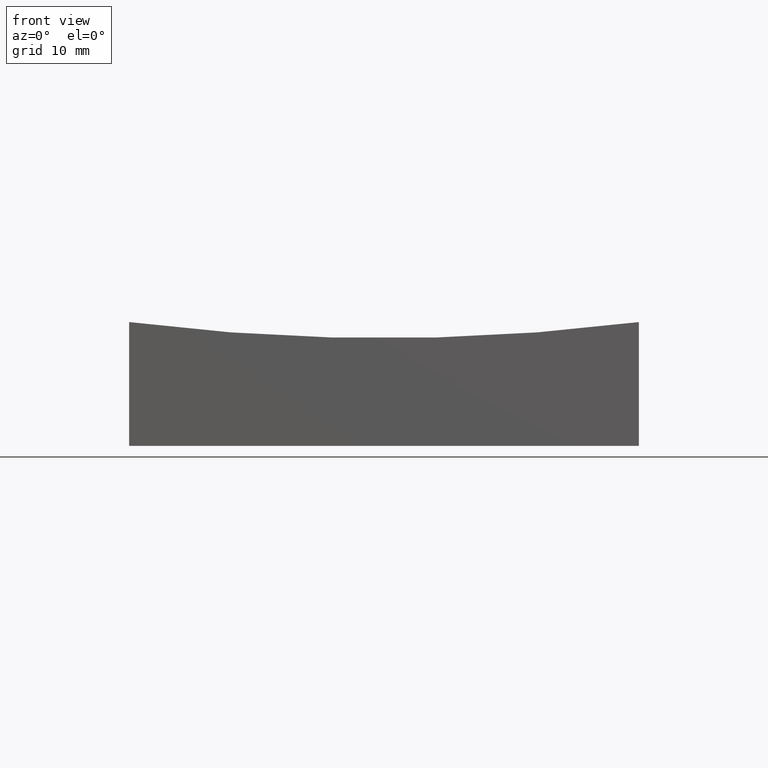
[diagram: clean part render]
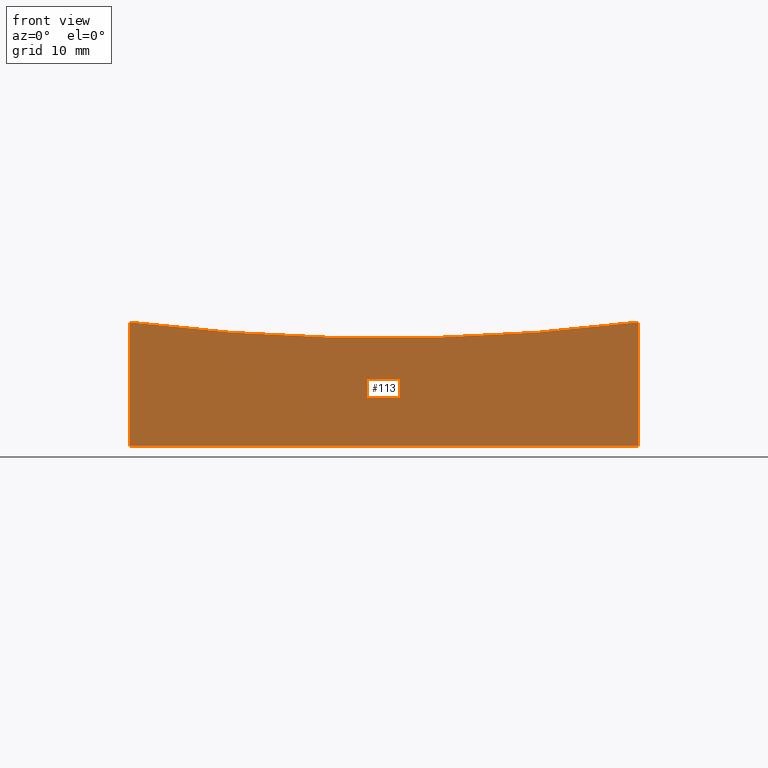
[diagram: same view with one face highlighted and labeled with its STEP entity id]
A machine part, front view. The second image highlights one B-rep face of the part: STEP entity #113.
In plain terms, the highlighted planar face has unit normal (0, 1, 0).
Its self-contained STEP definition (entity closure, byte-faithful):
#5 = LINE ( 'NONE', #128, #103 ) ;
#13 = ORIENTED_EDGE ( 'NONE', *, *, #206, .T. ) ;
#20 = CIRCLE ( 'NONE', #30, 198.4313483298443259 ) ;
#24 = DIRECTION ( 'NONE',  ( 1.000000000000000000, 0.0000000000000000000, 0.0000000000000000000 ) ) ;
#30 = AXIS2_PLACEMENT_3D ( 'NONE', #168, #207, #32 ) ;
#32 = DIRECTION ( 'NONE',  ( 0.0000000000000000000, 0.0000000000000000000, 1.000000000000000000 ) ) ;
#43 = VECTOR ( 'NONE', #171, 1000.000000000000000 ) ;
#48 = CARTESIAN_POINT ( 'NONE',  ( -25.00000000000000000, -25.00000000000000711, 0.0000000000000000000 ) ) ;
#67 = DIRECTION ( 'NONE',  ( -0.0000000000000000000, -0.0000000000000000000, -1.000000000000000000 ) ) ;
#73 = PLANE ( 'NONE',  #91 ) ;
#91 = AXIS2_PLACEMENT_3D ( 'NONE', #223, #92, #151 ) ;
#92 = DIRECTION ( 'NONE',  ( 0.0000000000000000000, 1.000000000000000000, 0.0000000000000000000 ) ) ;
#96 = CARTESIAN_POINT ( 'NONE',  ( 25.00000000000000000, -25.00000000000000711, 50.00000000000000000 ) ) ;
#100 = EDGE_CURVE ( 'NONE', #228, #127, #20, .T. ) ;
#103 = VECTOR ( 'NONE', #24, 1000.000000000000000 ) ;
#113 = ADVANCED_FACE ( 'NONE', ( #242 ), #73, .F. ) ;
#118 = LINE ( 'NONE', #96, #43 ) ;
#121 = LINE ( 'NONE', #163, #144 ) ;
#127 = VERTEX_POINT ( 'NONE', #227 ) ;
#128 = CARTESIAN_POINT ( 'NONE',  ( -25.00000000000000000, -25.00000000000000711, 0.0000000000000000000 ) ) ;
#139 = ORIENTED_EDGE ( 'NONE', *, *, #221, .T. ) ;
#144 = VECTOR ( 'NONE', #67, 1000.000000000000000 ) ;
#147 = VERTEX_POINT ( 'NONE', #231 ) ;
#151 = DIRECTION ( 'NONE',  ( 0.0000000000000000000, -0.0000000000000000000, 1.000000000000000000 ) ) ;
#154 = ORIENTED_EDGE ( 'NONE', *, *, #100, .T. ) ;
#163 = CARTESIAN_POINT ( 'NONE',  ( -25.00000000000000000, -25.00000000000000711, 50.00000000000000000 ) ) ;
#168 = CARTESIAN_POINT ( 'NONE',  ( 2.559511810217968067E-14, -25.00000000000000711, 209.0000000000000284 ) ) ;
#170 = ORIENTED_EDGE ( 'NONE', *, *, #181, .F. ) ;
#171 = DIRECTION ( 'NONE',  ( -0.0000000000000000000, -0.0000000000000000000, -1.000000000000000000 ) ) ;
#179 = CARTESIAN_POINT ( 'NONE',  ( 25.00000000000000000, -25.00000000000000711, 12.14980314970470765 ) ) ;
#181 = EDGE_CURVE ( 'NONE', #228, #147, #118, .T. ) ;
#201 = EDGE_LOOP ( 'NONE', ( #170, #154, #13, #139 ) ) ;
#206 = EDGE_CURVE ( 'NONE', #127, #232, #121, .T. ) ;
#207 = DIRECTION ( 'NONE',  ( 0.0000000000000000000, 1.000000000000000000, 0.0000000000000000000 ) ) ;
#221 = EDGE_CURVE ( 'NONE', #232, #147, #5, .T. ) ;
#223 = CARTESIAN_POINT ( 'NONE',  ( -25.00000000000000000, -25.00000000000000711, 50.00000000000000000 ) ) ;
#227 = CARTESIAN_POINT ( 'NONE',  ( -25.00000000000000000, -25.00000000000000711, 12.14980314970470765 ) ) ;
#228 = VERTEX_POINT ( 'NONE', #179 ) ;
#231 = CARTESIAN_POINT ( 'NONE',  ( 25.00000000000000000, -25.00000000000000711, 0.0000000000000000000 ) ) ;
#232 = VERTEX_POINT ( 'NONE', #48 ) ;
#242 = FACE_OUTER_BOUND ( 'NONE', #201, .T. ) ;